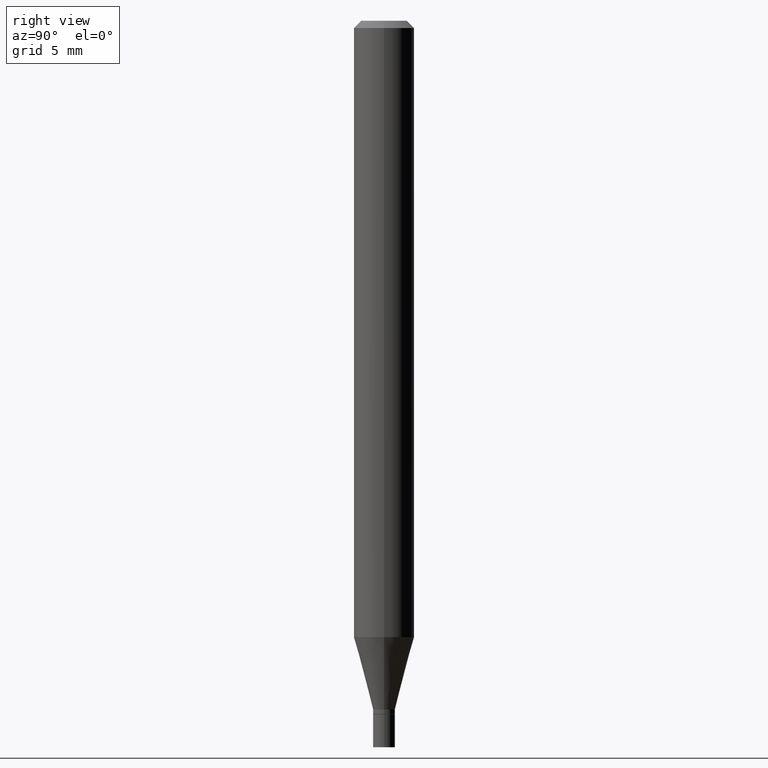
[diagram: clean part render]
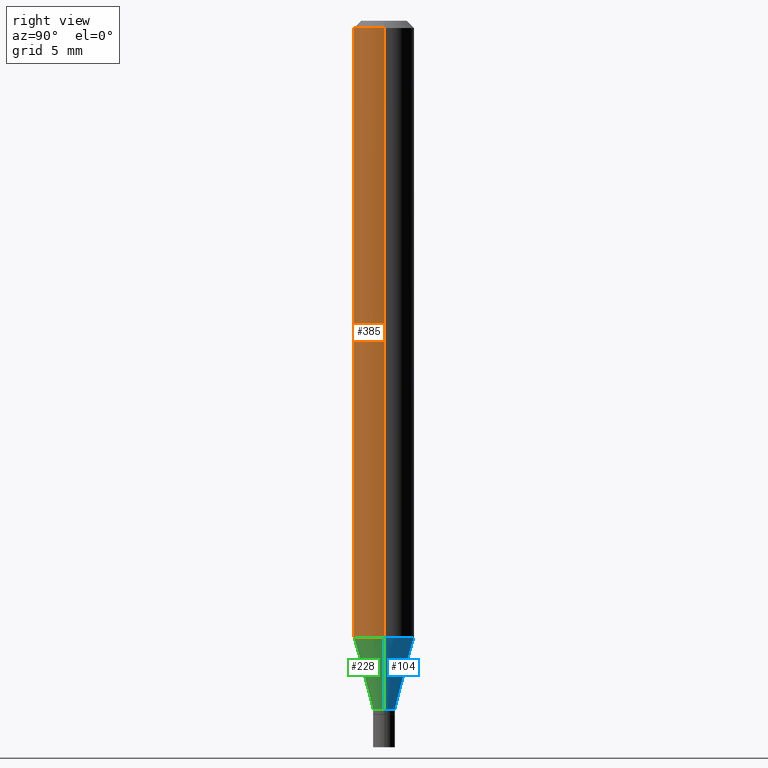
[diagram: same view with three faces highlighted in distinct colors, each labeled with its STEP entity id]
A machine part, right view with three faces highlighted in distinct colors.
Their STEP definitions:

[orange] entity #385 — the highlighted cylindrical surface (edge-blend (fillet) strip) has radius 1.5875 mm, axis along (-0, 0, 1).
#21 = FACE_OUTER_BOUND ( 'NONE', #153, .T. ) ;
#32 = DIRECTION ( 'NONE',  ( -2.445468806185136877E-29, 3.491481338843145188E-15, 1.000000000000000000 ) ) ;
#48 = VERTEX_POINT ( 'NONE', #70 ) ;
#59 = EDGE_CURVE ( 'NONE', #313, #48, #435, .T. ) ;
#70 = CARTESIAN_POINT ( 'NONE',  ( -0.06250000000000000000, -1.803932417103912611E-15, -0.01499999999999999944 ) ) ;
#92 = DIRECTION ( 'NONE',  ( -2.445468806185136597E-29, 3.491481338843145583E-15, 1.000000000000000000 ) ) ;
#98 = CARTESIAN_POINT ( 'NONE',  ( 0.06250000000000000000, -4.888073874380388472E-16, -0.01499999999999999944 ) ) ;
#101 = VERTEX_POINT ( 'NONE', #98 ) ;
#102 = AXIS2_PLACEMENT_3D ( 'NONE', #336, #242, #372 ) ;
#118 = AXIS2_PLACEMENT_3D ( 'NONE', #416, #92, #379 ) ;
#144 = ORIENTED_EDGE ( 'NONE', *, *, #256, .T. ) ;
#153 = EDGE_LOOP ( 'NONE', ( #402, #144, #258, #340 ) ) ;
#157 = AXIS2_PLACEMENT_3D ( 'NONE', #420, #344, #417 ) ;
#162 = CYLINDRICAL_SURFACE ( 'NONE', #157, 0.06250000000000000000 ) ;
#165 = CARTESIAN_POINT ( 'NONE',  ( 0.06250000000000000000, -4.880106201180694651E-15, -1.272717967697244434 ) ) ;
#173 = VERTEX_POINT ( 'NONE', #165 ) ;
#194 = CARTESIAN_POINT ( 'NONE',  ( 0.06250000000000000000, -4.364351673553916694E-16, 3.047610484872459871E-30 ) ) ;
#198 = EDGE_CURVE ( 'NONE', #48, #101, #414, .T. ) ;
#241 = CIRCLE ( 'NONE', #102, 0.06250000000000000000 ) ;
#242 = DIRECTION ( 'NONE',  ( -2.445468806185136597E-29, 3.491481338843145583E-15, 1.000000000000000000 ) ) ;
#253 = VECTOR ( 'NONE', #334, 39.37007874015748143 ) ;
#256 = EDGE_CURVE ( 'NONE', #313, #173, #241, .T. ) ;
#257 = CARTESIAN_POINT ( 'NONE',  ( -0.06250000000000000000, 4.440892098500626162E-16, -3.074334431409316114E-30 ) ) ;
#258 = ORIENTED_EDGE ( 'NONE', *, *, #291, .T. ) ;
#291 = EDGE_CURVE ( 'NONE', #173, #101, #445, .T. ) ;
#294 = VECTOR ( 'NONE', #32, 39.37007874015748143 ) ;
#313 = VERTEX_POINT ( 'NONE', #400 ) ;
#334 = DIRECTION ( 'NONE',  ( -2.445468806185136877E-29, 3.491481338843145188E-15, 1.000000000000000000 ) ) ;
#336 = CARTESIAN_POINT ( 'NONE',  ( 3.112392089074953397E-29, -4.443671033825302981E-15, -1.272717967697244434 ) ) ;
#340 = ORIENTED_EDGE ( 'NONE', *, *, #198, .F. ) ;
#344 = DIRECTION ( 'NONE',  ( -2.445468806185136597E-29, 3.491481338843145583E-15, 1.000000000000000000 ) ) ;
#372 = DIRECTION ( 'NONE',  ( 1.000000000000000000, -6.982962677686262766E-15, 0.000000000000000000 ) ) ;
#379 = DIRECTION ( 'NONE',  ( 1.000000000000000000, -6.982962677686266711E-15, 0.000000000000000000 ) ) ;
#385 = ADVANCED_FACE ( 'NONE', ( #21 ), #162, .T. ) ;
#400 = CARTESIAN_POINT ( 'NONE',  ( -0.06250000000000000000, -3.999581823975240365E-15, -1.272717967697244434 ) ) ;
#402 = ORIENTED_EDGE ( 'NONE', *, *, #59, .F. ) ;
#414 = CIRCLE ( 'NONE', #118, 0.06250000000000000000 ) ;
#416 = CARTESIAN_POINT ( 'NONE',  ( 3.668203209277705088E-31, -5.237222008264718399E-17, -0.01499999999999999944 ) ) ;
#417 = DIRECTION ( 'NONE',  ( 1.000000000000000000, -6.982962677686266711E-15, 4.876176775795935793E-29 ) ) ;
#420 = CARTESIAN_POINT ( 'NONE',  ( 0.000000000000000000, 0.000000000000000000, 0.000000000000000000 ) ) ;
#435 = LINE ( 'NONE', #257, #294 ) ;
#445 = LINE ( 'NONE', #194, #253 ) ;

[blue] entity #104 — the highlighted conical surface has half-angle 15 deg.
#6 = VERTEX_POINT ( 'NONE', #66 ) ;
#11 = CARTESIAN_POINT ( 'NONE',  ( -0.02249999999999992284, -4.805014348288931075E-15, -1.421999999999999931 ) ) ;
#30 = DIRECTION ( 'NONE',  ( 1.000000000000000000, -6.982962677686248567E-15, 0.000000000000000000 ) ) ;
#36 = EDGE_CURVE ( 'NONE', #273, #313, #393, .T. ) ;
#37 = VECTOR ( 'NONE', #152, 39.37007874015748143 ) ;
#63 = CONICAL_SURFACE ( 'NONE', #439, 0.02249999999999992284, 0.2617993877991492413 ) ;
#66 = CARTESIAN_POINT ( 'NONE',  ( 0.02249999999999992284, -5.122003124082893419E-15, -1.421999999999999931 ) ) ;
#87 = LINE ( 'NONE', #237, #434 ) ;
#96 = DIRECTION ( 'NONE',  ( -2.445468806185136597E-29, 3.491481338843145583E-15, 1.000000000000000000 ) ) ;
#104 = ADVANCED_FACE ( 'NONE', ( #107 ), #63, .T. ) ;
#107 = FACE_OUTER_BOUND ( 'NONE', #296, .T. ) ;
#124 = EDGE_CURVE ( 'NONE', #6, #273, #360, .T. ) ;
#132 = CIRCLE ( 'NONE', #207, 0.06250000000000000000 ) ;
#138 = CARTESIAN_POINT ( 'NONE',  ( -0.02249999999999992284, -4.402298086132085720E-15, -1.421999999999999931 ) ) ;
#152 = DIRECTION ( 'NONE',  ( -0.2588190451025205729, 5.211531920934545520E-15, 0.9659258262890684232 ) ) ;
#165 = CARTESIAN_POINT ( 'NONE',  ( 0.06250000000000000000, -4.880106201180694651E-15, -1.272717967697244434 ) ) ;
#173 = VERTEX_POINT ( 'NONE', #165 ) ;
#191 = ORIENTED_EDGE ( 'NONE', *, *, #357, .F. ) ;
#205 = AXIS2_PLACEMENT_3D ( 'NONE', #431, #349, #30 ) ;
#207 = AXIS2_PLACEMENT_3D ( 'NONE', #247, #96, #464 ) ;
#237 = CARTESIAN_POINT ( 'NONE',  ( 0.02249999999999992284, -5.122003124082893419E-15, -1.421999999999999931 ) ) ;
#247 = CARTESIAN_POINT ( 'NONE',  ( 3.112392089074953397E-29, -4.443671033825302981E-15, -1.272717967697244434 ) ) ;
#251 = DIRECTION ( 'NONE',  ( 1.000000000000000000, -6.982962677686248567E-15, 0.000000000000000000 ) ) ;
#273 = VERTEX_POINT ( 'NONE', #138 ) ;
#287 = CARTESIAN_POINT ( 'NONE',  ( 3.477456642395264859E-29, -4.964886463834953365E-15, -1.421999999999999931 ) ) ;
#296 = EDGE_LOOP ( 'NONE', ( #412, #306, #460, #191 ) ) ;
#306 = ORIENTED_EDGE ( 'NONE', *, *, #36, .T. ) ;
#313 = VERTEX_POINT ( 'NONE', #400 ) ;
#349 = DIRECTION ( 'NONE',  ( -2.445468806185136597E-29, 3.491481338843145583E-15, 1.000000000000000000 ) ) ;
#355 = DIRECTION ( 'NONE',  ( -2.445468806185136597E-29, 3.491481338843145583E-15, 1.000000000000000000 ) ) ;
#357 = EDGE_CURVE ( 'NONE', #6, #173, #87, .T. ) ;
#360 = CIRCLE ( 'NONE', #205, 0.02249999999999992284 ) ;
#393 = LINE ( 'NONE', #11, #37 ) ;
#400 = CARTESIAN_POINT ( 'NONE',  ( -0.06250000000000000000, -3.999581823975240365E-15, -1.272717967697244434 ) ) ;
#407 = DIRECTION ( 'NONE',  ( 0.2588190451025205729, 1.565188264969628081E-15, 0.9659258262890684232 ) ) ;
#412 = ORIENTED_EDGE ( 'NONE', *, *, #124, .T. ) ;
#415 = EDGE_CURVE ( 'NONE', #173, #313, #132, .T. ) ;
#431 = CARTESIAN_POINT ( 'NONE',  ( 3.477456642395264859E-29, -4.964886463834953365E-15, -1.421999999999999931 ) ) ;
#434 = VECTOR ( 'NONE', #407, 39.37007874015748143 ) ;
#439 = AXIS2_PLACEMENT_3D ( 'NONE', #287, #355, #251 ) ;
#460 = ORIENTED_EDGE ( 'NONE', *, *, #415, .F. ) ;
#464 = DIRECTION ( 'NONE',  ( 1.000000000000000000, -6.982962677686262766E-15, 0.000000000000000000 ) ) ;

[green] entity #228 — the highlighted conical surface has half-angle 15 deg.
#6 = VERTEX_POINT ( 'NONE', #66 ) ;
#8 = EDGE_CURVE ( 'NONE', #273, #6, #182, .T. ) ;
#11 = CARTESIAN_POINT ( 'NONE',  ( -0.02249999999999992284, -4.805014348288931075E-15, -1.421999999999999931 ) ) ;
#18 = DIRECTION ( 'NONE',  ( 1.000000000000000000, -6.982962677686248567E-15, 0.000000000000000000 ) ) ;
#33 = DIRECTION ( 'NONE',  ( 1.000000000000000000, -6.982962677686248567E-15, 0.000000000000000000 ) ) ;
#36 = EDGE_CURVE ( 'NONE', #273, #313, #393, .T. ) ;
#37 = VECTOR ( 'NONE', #152, 39.37007874015748143 ) ;
#42 = AXIS2_PLACEMENT_3D ( 'NONE', #216, #130, #33 ) ;
#66 = CARTESIAN_POINT ( 'NONE',  ( 0.02249999999999992284, -5.122003124082893419E-15, -1.421999999999999931 ) ) ;
#85 = DIRECTION ( 'NONE',  ( -2.445468806185136597E-29, 3.491481338843145583E-15, 1.000000000000000000 ) ) ;
#87 = LINE ( 'NONE', #237, #434 ) ;
#102 = AXIS2_PLACEMENT_3D ( 'NONE', #336, #242, #372 ) ;
#128 = FACE_OUTER_BOUND ( 'NONE', #146, .T. ) ;
#130 = DIRECTION ( 'NONE',  ( -2.445468806185136597E-29, 3.491481338843145583E-15, 1.000000000000000000 ) ) ;
#138 = CARTESIAN_POINT ( 'NONE',  ( -0.02249999999999992284, -4.402298086132085720E-15, -1.421999999999999931 ) ) ;
#146 = EDGE_LOOP ( 'NONE', ( #218, #457, #226, #309 ) ) ;
#152 = DIRECTION ( 'NONE',  ( -0.2588190451025205729, 5.211531920934545520E-15, 0.9659258262890684232 ) ) ;
#165 = CARTESIAN_POINT ( 'NONE',  ( 0.06250000000000000000, -4.880106201180694651E-15, -1.272717967697244434 ) ) ;
#173 = VERTEX_POINT ( 'NONE', #165 ) ;
#182 = CIRCLE ( 'NONE', #42, 0.02249999999999992284 ) ;
#212 = CONICAL_SURFACE ( 'NONE', #303, 0.02249999999999992284, 0.2617993877991492413 ) ;
#216 = CARTESIAN_POINT ( 'NONE',  ( 3.477456642395264859E-29, -4.964886463834953365E-15, -1.421999999999999931 ) ) ;
#218 = ORIENTED_EDGE ( 'NONE', *, *, #36, .F. ) ;
#226 = ORIENTED_EDGE ( 'NONE', *, *, #357, .T. ) ;
#228 = ADVANCED_FACE ( 'NONE', ( #128 ), #212, .T. ) ;
#237 = CARTESIAN_POINT ( 'NONE',  ( 0.02249999999999992284, -5.122003124082893419E-15, -1.421999999999999931 ) ) ;
#241 = CIRCLE ( 'NONE', #102, 0.06250000000000000000 ) ;
#242 = DIRECTION ( 'NONE',  ( -2.445468806185136597E-29, 3.491481338843145583E-15, 1.000000000000000000 ) ) ;
#256 = EDGE_CURVE ( 'NONE', #313, #173, #241, .T. ) ;
#273 = VERTEX_POINT ( 'NONE', #138 ) ;
#303 = AXIS2_PLACEMENT_3D ( 'NONE', #409, #85, #18 ) ;
#309 = ORIENTED_EDGE ( 'NONE', *, *, #256, .F. ) ;
#313 = VERTEX_POINT ( 'NONE', #400 ) ;
#336 = CARTESIAN_POINT ( 'NONE',  ( 3.112392089074953397E-29, -4.443671033825302981E-15, -1.272717967697244434 ) ) ;
#357 = EDGE_CURVE ( 'NONE', #6, #173, #87, .T. ) ;
#372 = DIRECTION ( 'NONE',  ( 1.000000000000000000, -6.982962677686262766E-15, 0.000000000000000000 ) ) ;
#393 = LINE ( 'NONE', #11, #37 ) ;
#400 = CARTESIAN_POINT ( 'NONE',  ( -0.06250000000000000000, -3.999581823975240365E-15, -1.272717967697244434 ) ) ;
#407 = DIRECTION ( 'NONE',  ( 0.2588190451025205729, 1.565188264969628081E-15, 0.9659258262890684232 ) ) ;
#409 = CARTESIAN_POINT ( 'NONE',  ( 3.477456642395264859E-29, -4.964886463834953365E-15, -1.421999999999999931 ) ) ;
#434 = VECTOR ( 'NONE', #407, 39.37007874015748143 ) ;
#457 = ORIENTED_EDGE ( 'NONE', *, *, #8, .T. ) ;